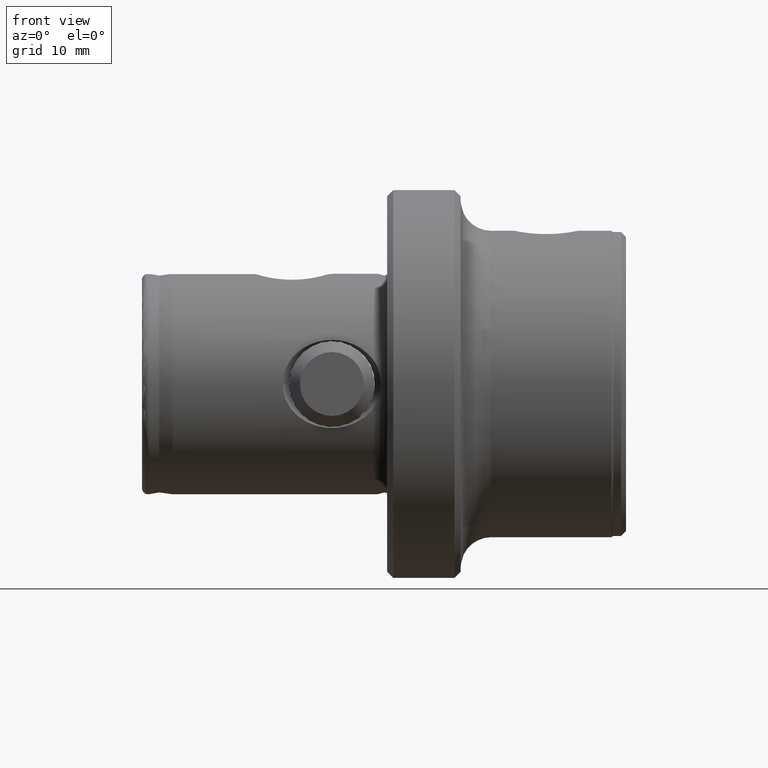
[diagram: clean part render]
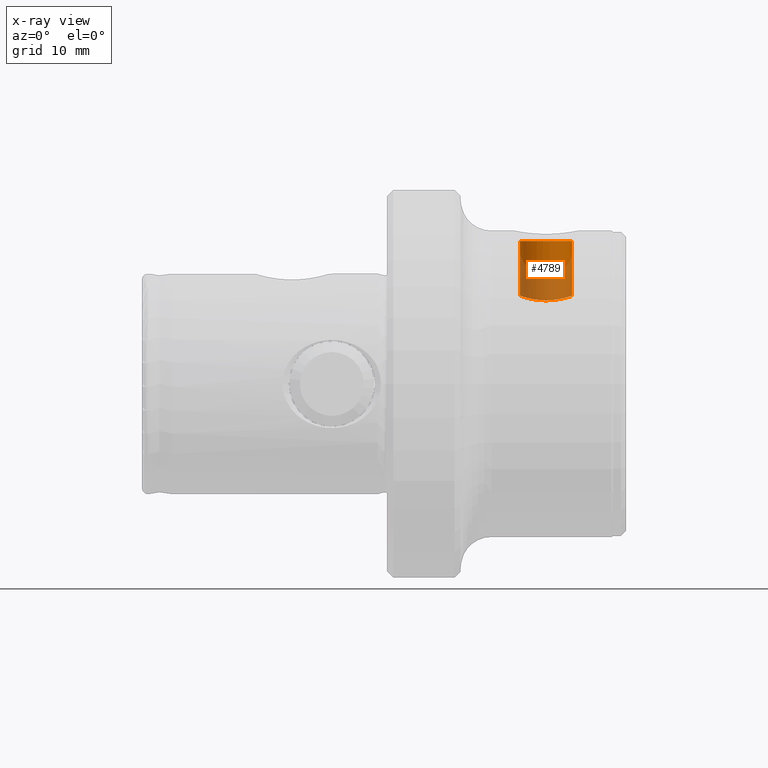
[diagram: x-ray — body ghosted, one internal face saturated and labeled with its STEP entity id]
A machine part, front view, then the same camera in x-ray: the body is ghosted and one INTERNAL B-rep face — a face not visible from any outside direction — is saturated and labeled: STEP entity #4789.
In plain terms, the highlighted cylindrical surface (edge-blend (fillet) strip) has radius 4.25 mm, axis along (0, 0, 1).
Its self-contained STEP definition (entity closure, byte-faithful):
#50 = CARTESIAN_POINT ( 'NONE',  ( 61.70000000000000300, 5.740531871003215000E-016, 23.32499999999998900 ) ) ;
#190 = CARTESIAN_POINT ( 'NONE',  ( 69.23840068476843600, -2.693621141526497000, 14.09494850838422900 ) ) ;
#211 = CARTESIAN_POINT ( 'NONE',  ( 66.38065605653770300, -4.229580275012708900, 13.63868399201260200 ) ) ;
#230 = CARTESIAN_POINT ( 'NONE',  ( 64.56550793852216000, -4.019388491779006100, 13.71501852631547000 ) ) ;
#245 = CARTESIAN_POINT ( 'NONE',  ( 62.17340752329111100, -1.973957790499437600, 14.23348381462529300 ) ) ;
#417 = ORIENTED_EDGE ( 'NONE', *, *, #3026, .T. ) ;
#562 = B_SPLINE_CURVE_WITH_KNOTS ( 'NONE', 3,
 ( #3797, #995, #1795, #4618, #2187, #5043, #2594, #190, #3002, #599, #3401, #1010, #3819, #1412, #4218, #1818, #4640, #2202, #5056, #2616, #211, #3014, #623, #3424, #1028, #3835, #1433, #4238, #1829, #4662, #2219, #5073, #2632, #230, #3033, #637, #3448, #1047, #3848, #1450, #4257, #1847, #4675, #2237, #5094, #2645, #245, #3052, #655, #3458, #1065 ),
 .UNSPECIFIED., .F., .F.,
 ( 4, 2, 2, 2, 2, 2, 2, 2, 2, 2, 2, 1, 1, 1, 2, 2, 2, 2, 1, 1, 1, 1, 2, 2, 2, 2, 2, 2, 4 ),
 ( 0.0000000000000000000, 0.06250065075640792700, 0.09375097613461189100, 0.1093761388237142600, 0.1171887201682650200, 0.1210950108405408600, 0.1250013015128166900, 0.1562516268910217600, 0.1875019522692267800, 0.2187522776474318500, 0.2343774403365343500, 0.2421900216810856400, 0.2460963123533602400, 0.2480494576894975400, 0.2490260303575662100, 0.2500026030256348700, 0.2812529284038232100, 0.2968780910929165700, 0.3046906724374625600, 0.3085969631097355600, 0.3105501084458720000, 0.3115266811139402700, 0.3120149674479750200, 0.3125032537820097700, 0.3437535791602184800, 0.3750039045384271900, 0.4062542299166359000, 0.4375045552948448900, 0.5000052060512627500 ),
 .UNSPECIFIED. ) ;
#598 = VERTEX_POINT ( 'NONE', #4426 ) ;
#599 = CARTESIAN_POINT ( 'NONE',  ( 69.10205704606715900, -2.851103067497225800, 14.05830561781862900 ) ) ;
#623 = CARTESIAN_POINT ( 'NONE',  ( 66.13331469293861200, -4.246622933010325300, 13.63030980473778400 ) ) ;
#637 = CARTESIAN_POINT ( 'NONE',  ( 64.38046977877870300, -3.949646334358150000, 13.73898507379552700 ) ) ;
#655 = CARTESIAN_POINT ( 'NONE',  ( 61.76379992475146000, -0.9208222214342898200, 14.36827914264020800 ) ) ;
#739 = ORIENTED_EDGE ( 'NONE', *, *, #1624, .F. ) ;
#871 = DIRECTION ( 'NONE',  ( 0.0000000000000000000, 0.0000000000000000000, -1.000000000000000000 ) ) ;
#995 = CARTESIAN_POINT ( 'NONE',  ( 70.19999999999997400, -0.4264758536743285500, 14.39999129503518600 ) ) ;
#1010 = CARTESIAN_POINT ( 'NONE',  ( 69.01557278442362500, -2.943901920779180300, 14.03540387940702100 ) ) ;
#1028 = CARTESIAN_POINT ( 'NONE',  ( 65.99614857476557000, -4.249783369193707500, 13.62865891648610600 ) ) ;
#1047 = CARTESIAN_POINT ( 'NONE',  ( 64.33640081032410800, -3.931770639965879200, 13.74505125698172000 ) ) ;
#1065 = CARTESIAN_POINT ( 'NONE',  ( 61.70000000335126300, -5.980508053583325200E-008, 14.40000002226149100 ) ) ;
#1115 = EDGE_CURVE ( 'NONE', #598, #2838, #4425, .T. ) ;
#1412 = CARTESIAN_POINT ( 'NONE',  ( 68.70603951104119700, -3.254431231665098500, 13.95446070372764800 ) ) ;
#1433 = CARTESIAN_POINT ( 'NONE',  ( 65.96415847637905500, -4.249981215662047300, 13.62856057694350800 ) ) ;
#1450 = CARTESIAN_POINT ( 'NONE',  ( 64.32187583981854600, -3.925776713729950600, 13.74707930954023600 ) ) ;
#1457 = CARTESIAN_POINT ( 'NONE',  ( 61.70000000000000300, 5.204748896376238900E-016, 25.00000000000000000 ) ) ;
#1624 = EDGE_CURVE ( 'NONE', #4344, #598, #2394, .T. ) ;
#1795 = CARTESIAN_POINT ( 'NONE',  ( 70.13599967117762900, -0.9215763006524110300, 14.36829377694673200 ) ) ;
#1818 = CARTESIAN_POINT ( 'NONE',  ( 67.90088855805889500, -3.788942714648015500, 13.79958110423053900 ) ) ;
#1829 = CARTESIAN_POINT ( 'NONE',  ( 65.69828937184821900, -4.250084725576529700, 13.62859621894765100 ) ) ;
#1842 = DIRECTION ( 'NONE',  ( -0.0000000000000000000, -0.0000000000000000000, 1.000000000000000000 ) ) ;
#1847 = CARTESIAN_POINT ( 'NONE',  ( 63.90128437253489600, -3.733907300455644700, 13.81162861359076500 ) ) ;
#1959 = LINE ( 'NONE', #1457, #5091 ) ;
#2067 = EDGE_CURVE ( 'NONE', #4011, #2838, #1959, .T. ) ;
#2187 = CARTESIAN_POINT ( 'NONE',  ( 69.72650097547648300, -1.974078439921882900, 14.23359896433526700 ) ) ;
#2202 = CARTESIAN_POINT ( 'NONE',  ( 67.10549795541827200, -4.099348327647633500, 13.69364246476947300 ) ) ;
#2219 = CARTESIAN_POINT ( 'NONE',  ( 65.02029739548301300, -4.149415733725593500, 13.66827038739808300 ) ) ;
#2237 = CARTESIAN_POINT ( 'NONE',  ( 63.18850521449253000, -3.248796444904594500, 13.95596860578292600 ) ) ;
#2394 = LINE ( 'NONE', #3163, #3347 ) ;
#2594 = CARTESIAN_POINT ( 'NONE',  ( 69.39003096373380700, -2.501076296159084700, 14.13654331784846500 ) ) ;
#2616 = CARTESIAN_POINT ( 'NONE',  ( 66.49566373419600000, -4.216542372351171700, 13.64478492746982700 ) ) ;
#2632 = CARTESIAN_POINT ( 'NONE',  ( 64.67097637668844400, -4.053632917586592800, 13.70294635971151800 ) ) ;
#2645 = CARTESIAN_POINT ( 'NONE',  ( 62.50087893345621400, -2.502543498549280700, 14.13833533818998100 ) ) ;
#2701 = AXIS2_PLACEMENT_3D ( 'NONE', #5100, #3450, #4695 ) ;
#2838 = VERTEX_POINT ( 'NONE', #50 ) ;
#2904 = ORIENTED_EDGE ( 'NONE', *, *, #2067, .T. ) ;
#2931 = CYLINDRICAL_SURFACE ( 'NONE', #2701, 4.249999999999990200 ) ;
#3002 = CARTESIAN_POINT ( 'NONE',  ( 69.18537816970145100, -2.757142976277263000, 14.08058843455980000 ) ) ;
#3014 = CARTESIAN_POINT ( 'NONE',  ( 66.21467625896458700, -4.242113266214464500, 13.63259139882901400 ) ) ;
#3026 = EDGE_CURVE ( 'NONE', #4344, #4011, #562, .T. ) ;
#3033 = CARTESIAN_POINT ( 'NONE',  ( 64.44216639846769100, -3.973844223669631400, 13.73072572407139800 ) ) ;
#3052 = CARTESIAN_POINT ( 'NONE',  ( 62.04745438235422500, -1.705889463174051800, 14.27312924929213400 ) ) ;
#3163 = CARTESIAN_POINT ( 'NONE',  ( 70.19999999999998900, 0.0000000000000000000, 25.00000000000000000 ) ) ;
#3265 = CARTESIAN_POINT ( 'NONE',  ( 65.94999999999998900, 0.0000000000000000000, 23.32499999999998900 ) ) ;
#3347 = VECTOR ( 'NONE', #3571, 1000.000000000000000 ) ;
#3401 = CARTESIAN_POINT ( 'NONE',  ( 69.07365236396113100, -2.882202443425195200, 14.05075422790415200 ) ) ;
#3424 = CARTESIAN_POINT ( 'NONE',  ( 66.04136665271428800, -4.249156401192433200, 13.62898617434066800 ) ) ;
#3443 = FACE_OUTER_BOUND ( 'NONE', #4841, .T. ) ;
#3448 = CARTESIAN_POINT ( 'NONE',  ( 64.34962109349308400, -3.937187570216436500, 13.74321618636912800 ) ) ;
#3450 = DIRECTION ( 'NONE',  ( -0.0000000000000000000, -0.0000000000000000000, 1.000000000000000000 ) ) ;
#3458 = CARTESIAN_POINT ( 'NONE',  ( 61.70000000299627600, -0.4258454497250063800, 14.39999718629755400 ) ) ;
#3552 = CARTESIAN_POINT ( 'NONE',  ( 70.19999999999998900, 2.384666311022292200E-016, 14.40000002359717800 ) ) ;
#3571 = DIRECTION ( 'NONE',  ( -0.0000000000000000000, -0.0000000000000000000, 1.000000000000000000 ) ) ;
#3577 = CARTESIAN_POINT ( 'NONE',  ( 61.70000000335126300, -5.980508053583325200E-008, 14.40000002226149100 ) ) ;
#3682 = DIRECTION ( 'NONE',  ( 1.000000000000000000, 0.0000000000000000000, 0.0000000000000000000 ) ) ;
#3797 = CARTESIAN_POINT ( 'NONE',  ( 70.19999999999998900, 2.384666311022292200E-016, 14.40000002359717800 ) ) ;
#3819 = CARTESIAN_POINT ( 'NONE',  ( 68.98677706371206900, -2.973622634431063000, 14.02783460355032100 ) ) ;
#3835 = CARTESIAN_POINT ( 'NONE',  ( 65.97693266602708200, -4.249919461287977800, 13.62859035397929500 ) ) ;
#3848 = CARTESIAN_POINT ( 'NONE',  ( 64.32758749173173400, -3.928142100692779700, 13.74627946775733100 ) ) ;
#4011 = VERTEX_POINT ( 'NONE', #3577 ) ;
#4110 = AXIS2_PLACEMENT_3D ( 'NONE', #3265, #871, #3682 ) ;
#4218 = CARTESIAN_POINT ( 'NONE',  ( 68.43900047072196500, -3.459325037864369600, 13.89739628611349300 ) ) ;
#4238 = CARTESIAN_POINT ( 'NONE',  ( 65.95933703940113400, -4.249997105442801600, 13.62855340135888600 ) ) ;
#4257 = CARTESIAN_POINT ( 'NONE',  ( 64.12202027304614700, -3.842707716789542700, 13.77515118725429000 ) ) ;
#4344 = VERTEX_POINT ( 'NONE', #3552 ) ;
#4425 = CIRCLE ( 'NONE', #4110, 4.249999999999990200 ) ;
#4426 = CARTESIAN_POINT ( 'NONE',  ( 70.19999999999998900, 0.0000000000000000000, 23.32499999999998900 ) ) ;
#4618 = CARTESIAN_POINT ( 'NONE',  ( 69.85238173034618100, -1.706243201280605000, 14.27321431552434700 ) ) ;
#4640 = CARTESIAN_POINT ( 'NONE',  ( 67.62981747439158700, -3.913827473087167600, 13.75883033996173300 ) ) ;
#4662 = CARTESIAN_POINT ( 'NONE',  ( 65.43185398087523200, -4.227530740208302400, 13.63853033109253900 ) ) ;
#4675 = CARTESIAN_POINT ( 'NONE',  ( 63.43374485010268400, -3.436242056554083200, 13.90225831359205900 ) ) ;
#4695 = DIRECTION ( 'NONE',  ( 1.000000000000000000, 0.0000000000000000000, 0.0000000000000000000 ) ) ;
#4789 = ADVANCED_FACE ( 'NONE', ( #3443 ), #2931, .F. ) ;
#4841 = EDGE_LOOP ( 'NONE', ( #417, #2904, #5003, #739 ) ) ;
#5003 = ORIENTED_EDGE ( 'NONE', *, *, #1115, .F. ) ;
#5043 = CARTESIAN_POINT ( 'NONE',  ( 69.48118860581597300, -2.370088259187888500, 14.16229264147922100 ) ) ;
#5056 = CARTESIAN_POINT ( 'NONE',  ( 66.85220376876731100, -4.160101238458117300, 13.66920535384601400 ) ) ;
#5073 = CARTESIAN_POINT ( 'NONE',  ( 64.88117033071154100, -4.116001479126500100, 13.68065688751463500 ) ) ;
#5091 = VECTOR ( 'NONE', #1842, 1000.000000000000000 ) ;
#5094 = CARTESIAN_POINT ( 'NONE',  ( 62.70252524272858400, -2.763048948479665000, 14.08283229642150600 ) ) ;
#5100 = CARTESIAN_POINT ( 'NONE',  ( 65.94999999999998900, 0.0000000000000000000, 25.00000000000000000 ) ) ;